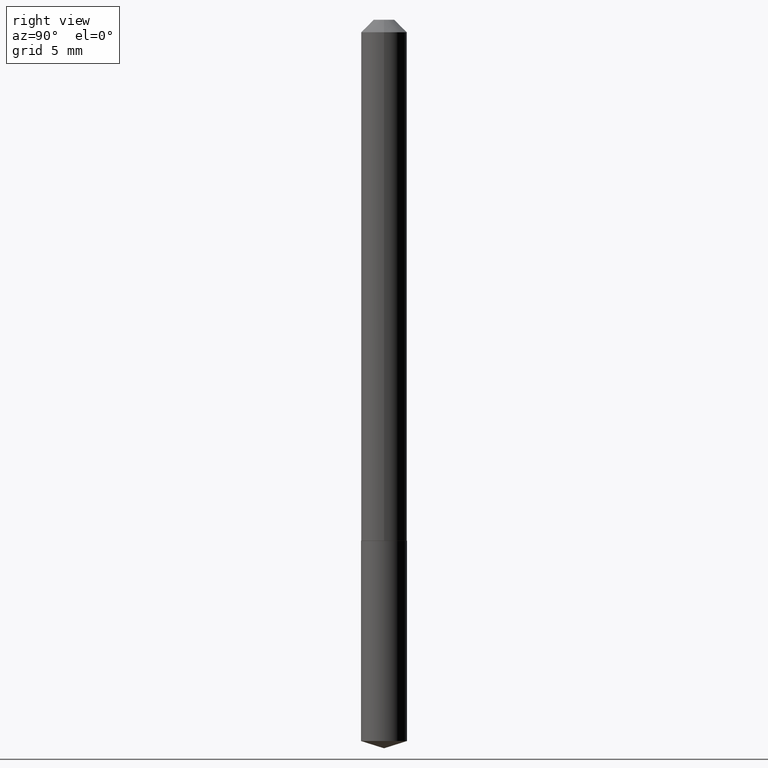
[diagram: clean part render]
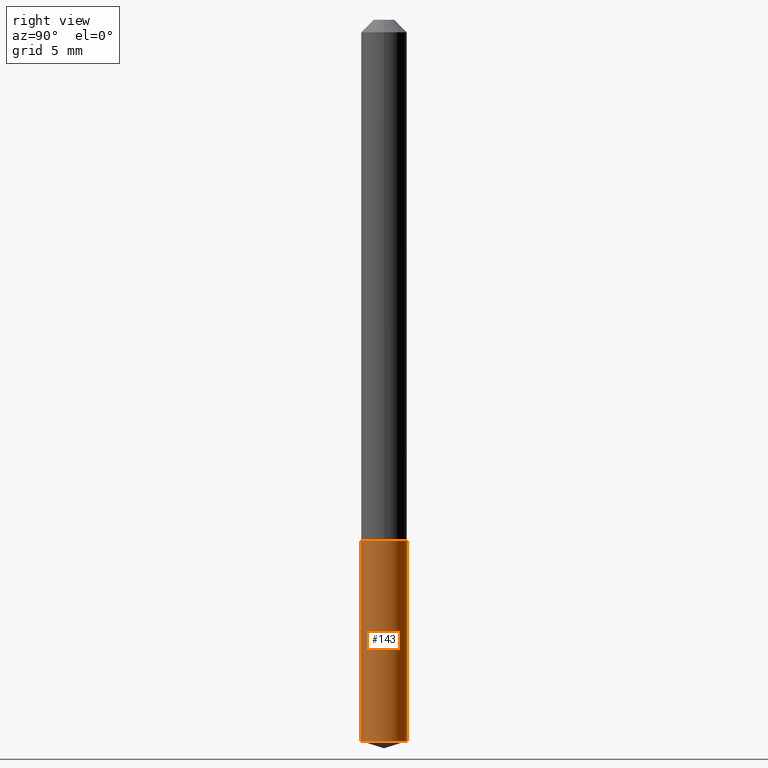
[diagram: same view with one face highlighted and labeled with its STEP entity id]
A machine part, right view. The second image highlights one B-rep face of the part: STEP entity #143.
In plain terms, the highlighted cylindrical surface (edge-blend (fillet) strip) has radius 1.4503 mm, axis along (-0, 0, 1).
Its self-contained STEP definition (entity closure, byte-faithful):
#6 = EDGE_LOOP ( 'NONE', ( #192, #185, #89, #149 ) ) ;
#7 = CARTESIAN_POINT ( 'NONE',  ( 3.167615744651606811E-29, -4.522515778203526217E-15, -1.295299999999999674 ) ) ;
#8 = DIRECTION ( 'NONE',  ( -2.445529246400039485E-29, 3.491394785015361534E-15, 1.000000000000000000 ) ) ;
#15 = DIRECTION ( 'NONE',  ( -2.445529246400039205E-29, 3.491394785015361534E-15, 1.000000000000000000 ) ) ;
#16 = CARTESIAN_POINT ( 'NONE',  ( 4.384746942434342202E-29, -6.260170530390042829E-15, -1.792996439155009947 ) ) ;
#17 = LINE ( 'NONE', #41, #334 ) ;
#38 = VERTEX_POINT ( 'NONE', #37 ) ;
#37 = CARTESIAN_POINT ( 'NONE',  ( 4.057199021190609736E-16, 0.05709999999999547382, -1.295299999999999896 ) ) ;
#41 = CARTESIAN_POINT ( 'NONE',  ( 4.057199021190487955E-16, 0.05709999999999547382, -1.295299999999999896 ) ) ;
#48 = CARTESIAN_POINT ( 'NONE',  ( -3.987271688958540602E-16, -0.05710000000000452214, -1.295299999999999452 ) ) ;
#60 = VERTEX_POINT ( 'NONE', #288 ) ;
#70 = EDGE_CURVE ( 'NONE', #60, #38, #17, .T. ) ;
#78 = LINE ( 'NONE', #48, #102 ) ;
#89 = ORIENTED_EDGE ( 'NONE', *, *, #155, .F. ) ;
#96 = CYLINDRICAL_SURFACE ( 'NONE', #388, 0.05709999999999999798 ) ;
#102 = VECTOR ( 'NONE', #328, 39.37007874015748143 ) ;
#105 = DIRECTION ( 'NONE',  ( -2.445529246400039205E-29, 3.491394785015361534E-15, 1.000000000000000000 ) ) ;
#107 = DIRECTION ( 'NONE',  ( -6.982962677686265133E-15, -1.000000000000000000, 4.784322230585399479E-15 ) ) ;
#124 = AXIS2_PLACEMENT_3D ( 'NONE', #7, #283, #107 ) ;
#130 = DIRECTION ( 'NONE',  ( -6.982962677686265133E-15, -1.000000000000000000, 4.784322230585399479E-15 ) ) ;
#142 = DIRECTION ( 'NONE',  ( -6.982962677686265133E-15, -1.000000000000000000, 4.784322230585399479E-15 ) ) ;
#143 = ADVANCED_FACE ( 'NONE', ( #222 ), #96, .T. ) ;
#144 = CARTESIAN_POINT ( 'NONE',  ( -3.987271688958418328E-16, -0.05710000000000623605, -1.792996439155009725 ) ) ;
#149 = ORIENTED_EDGE ( 'NONE', *, *, #319, .F. ) ;
#155 = EDGE_CURVE ( 'NONE', #351, #38, #260, .T. ) ;
#157 = VERTEX_POINT ( 'NONE', #144 ) ;
#185 = ORIENTED_EDGE ( 'NONE', *, *, #70, .T. ) ;
#192 = ORIENTED_EDGE ( 'NONE', *, *, #215, .T. ) ;
#196 = CIRCLE ( 'NONE', #302, 0.05709999999999999798 ) ;
#215 = EDGE_CURVE ( 'NONE', #157, #60, #196, .T. ) ;
#222 = FACE_OUTER_BOUND ( 'NONE', #6, .T. ) ;
#260 = CIRCLE ( 'NONE', #124, 0.05709999999999999798 ) ;
#283 = DIRECTION ( 'NONE',  ( -2.445529246400039205E-29, 3.491394785015361534E-15, 1.000000000000000000 ) ) ;
#288 = CARTESIAN_POINT ( 'NONE',  ( 4.057199021190608256E-16, 0.05709999999999371828, -1.792996439155010391 ) ) ;
#302 = AXIS2_PLACEMENT_3D ( 'NONE', #16, #105, #142 ) ;
#312 = CARTESIAN_POINT ( 'NONE',  ( -3.987271688958540602E-16, -0.05710000000000452214, -1.295299999999999452 ) ) ;
#315 = CARTESIAN_POINT ( 'NONE',  ( 3.167615744651606811E-29, -4.522515778203526217E-15, -1.295299999999999674 ) ) ;
#319 = EDGE_CURVE ( 'NONE', #157, #351, #78, .T. ) ;
#328 = DIRECTION ( 'NONE',  ( -2.445529246400039485E-29, 3.491394785015361534E-15, 1.000000000000000000 ) ) ;
#334 = VECTOR ( 'NONE', #8, 39.37007874015748143 ) ;
#351 = VERTEX_POINT ( 'NONE', #312 ) ;
#388 = AXIS2_PLACEMENT_3D ( 'NONE', #315, #15, #130 ) ;